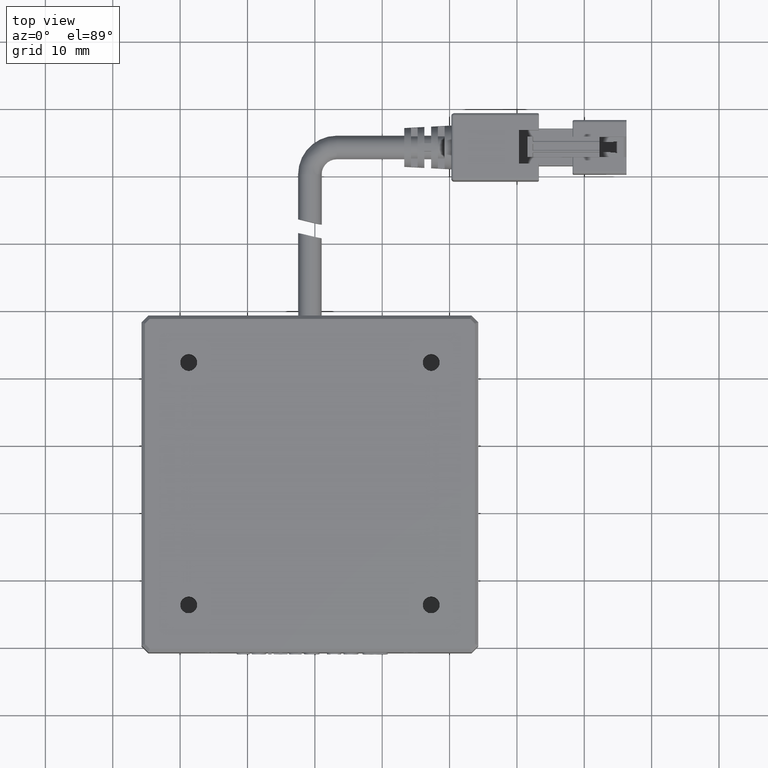
[diagram: clean part render]
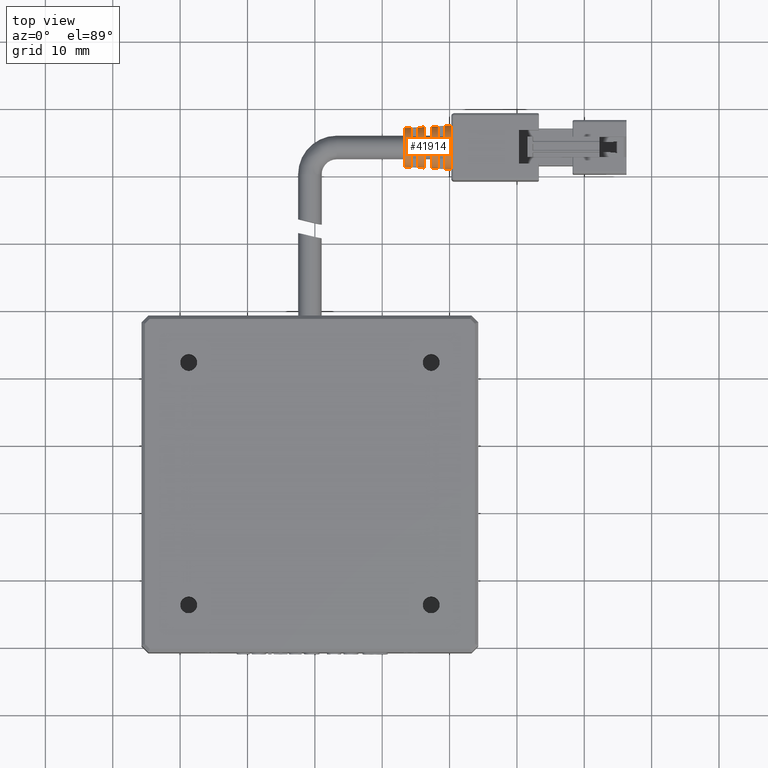
[diagram: same view with one face highlighted and labeled with its STEP entity id]
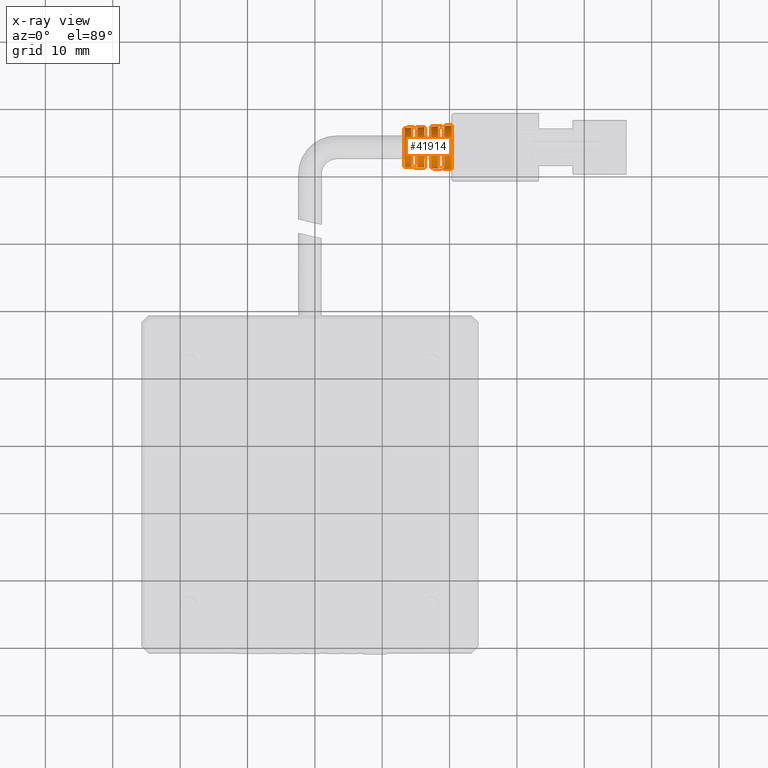
[diagram: x-ray of the same camera — body ghosted, the highlighted face saturated]
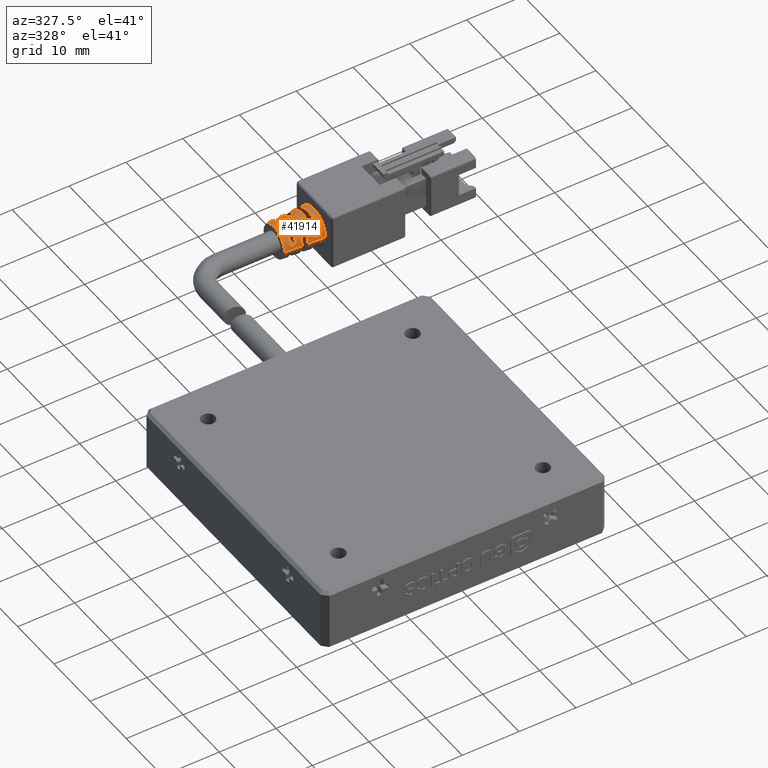
[diagram: same view with one face highlighted and labeled with its STEP entity id]
A machine part, top view. The second image highlights one B-rep face of the part: STEP entity #41914.
The next image is the same camera in x-ray: the body ghosted, the highlighted face saturated — about 0% of this face is hidden behind the body in this view.
A second angle (auxiliary view) of the same face is appended — the face is thin or edge-on in the first view.
In plain terms, the highlighted conical surface has half-angle 3 deg.
Its self-contained STEP definition (entity closure, byte-faithful):
#172 = CARTESIAN_POINT ( 'NONE',  ( 36.26702531644617300, 63.61113924050633300, 1.730577619171422600 ) ) ;
#331 = VERTEX_POINT ( 'NONE', #29897 ) ;
#499 = ORIENTED_EDGE ( 'NONE', *, *, #27293, .T. ) ;
#663 = ORIENTED_EDGE ( 'NONE', *, *, #42182, .T. ) ;
#861 = AXIS2_PLACEMENT_3D ( 'NONE', #16509, #39329, #19837 ) ;
#905 = EDGE_CURVE ( 'NONE', #26770, #31217, #25239, .T. ) ;
#979 = CARTESIAN_POINT ( 'NONE',  ( 36.26702531643662300, 64.21113924050634100, -1.250000000000000700 ) ) ;
#1541 = ORIENTED_EDGE ( 'NONE', *, *, #14907, .T. ) ;
#1725 = VECTOR ( 'NONE', #1904, 1000.000000000000200 ) ;
#1745 = DIRECTION ( 'NONE',  ( 0.9986295347545816000, 0.05233595624279531500, -4.539420596603596700E-018 ) ) ;
#1880 = VERTEX_POINT ( 'NONE', #18874 ) ;
#1904 = DIRECTION ( 'NONE',  ( 0.9986295347545816000, 0.05233595624279531500, -4.539420596603596700E-018 ) ) ;
#1972 = DIRECTION ( 'NONE',  ( -1.000000000000000000, -0.0000000000000000000, -0.0000000000000000000 ) ) ;
#1989 = DIRECTION ( 'NONE',  ( 0.0000000000000000000, 1.000000000000000000, -6.672013369143582000E-017 ) ) ;
#2211 = CARTESIAN_POINT ( 'NONE',  ( 40.26702531645572200, 60.96113924050732900, -1.250000000000000000 ) ) ;
#2361 = CARTESIAN_POINT ( 'NONE',  ( 36.60035832392478000, 64.81113924050633600, 1.748397300001394800 ) ) ;
#2419 = CARTESIAN_POINT ( 'NONE',  ( 34.26702531646981200, 67.08472120728976100, -0.6500000000000016900 ) ) ;
#2763 = CIRCLE ( 'NONE', #36820, 2.987961103584790800 ) ;
#2811 = AXIS2_PLACEMENT_3D ( 'NONE', #22574, #6587, #19724 ) ;
#2850 = ORIENTED_EDGE ( 'NONE', *, *, #21846, .T. ) ;
#3144 = VERTEX_POINT ( 'NONE', #40785 ) ;
#4222 = DIRECTION ( 'NONE',  ( 0.0000000000000000000, 1.000000000000000000, -9.984861047838719200E-016 ) ) ;
#4897 = VERTEX_POINT ( 'NONE', #26380 ) ;
#4975 = CARTESIAN_POINT ( 'NONE',  ( 38.93369169520680400, 61.08812897988507700, -0.6500000000000004700 ) ) ;
#5043 = VERTEX_POINT ( 'NONE', #14240 ) ;
#5325 = B_SPLINE_CURVE_WITH_KNOTS ( 'NONE', 3,
 ( #2419, #5519, #31462, #5649 ),
 .UNSPECIFIED., .F., .F.,
 ( 4, 4 ),
 ( 2.821323884305459600E-015, 0.001001431039903069900 ),
 .UNSPECIFIED. ) ;
#5519 = CARTESIAN_POINT ( 'NONE',  ( 34.60035828589212100, 67.10256718773193500, -0.6500000000000016900 ) ) ;
#5649 = CARTESIAN_POINT ( 'NONE',  ( 35.26702531645936700, 67.13823875308449400, -0.6500000000000015800 ) ) ;
#5942 = DIRECTION ( 'NONE',  ( 1.000000000000000000, 0.0000000000000000000, 0.0000000000000000000 ) ) ;
#6250 = VECTOR ( 'NONE', #1745, 1000.000000000000200 ) ;
#6303 = CARTESIAN_POINT ( 'NONE',  ( 37.26702531646982000, 61.11836257835526000, -1.250000000000000000 ) ) ;
#6365 = CARTESIAN_POINT ( 'NONE',  ( 34.93369162600836100, 61.30187223562795400, -0.6500000000000011300 ) ) ;
#6587 = DIRECTION ( 'NONE',  ( 1.000000000000000000, 0.0000000000000000000, 0.0000000000000000000 ) ) ;
#6601 = CARTESIAN_POINT ( 'NONE',  ( 34.26702531646981200, 67.08472120728976100, -0.6500000000000016900 ) ) ;
#6651 = CARTESIAN_POINT ( 'NONE',  ( 36.93369166311235600, 63.61113924050633300, 1.766210776928611700 ) ) ;
#6823 = CIRCLE ( 'NONE', #36509, 3.197592220717360200 ) ;
#7009 = AXIS2_PLACEMENT_3D ( 'NONE', #32093, #12530, #35339 ) ;
#7090 = CIRCLE ( 'NONE', #16232, 3.040368882866448400 ) ;
#7447 = CARTESIAN_POINT ( 'NONE',  ( 36.26702531643662300, 67.25150812337278700, -1.250000000000000900 ) ) ;
#8037 = EDGE_CURVE ( 'NONE', #39608, #37147, #40804, .T. ) ;
#8627 = FACE_BOUND ( 'NONE', #16691, .T. ) ;
#9239 = B_SPLINE_CURVE_WITH_KNOTS ( 'NONE', 3,
 ( #15329, #35030, #15625, #38423 ),
 .UNSPECIFIED., .F., .F.,
 ( 4, 4 ),
 ( 9.453208419344606800E-016, 0.001001423258045922700 ),
 .UNSPECIFIED. ) ;
#10423 = EDGE_CURVE ( 'NONE', #20708, #1880, #40913, .T. ) ;
#10573 = VERTEX_POINT ( 'NONE', #18946 ) ;
#11100 = DIRECTION ( 'NONE',  ( 0.9986295347545816000, -0.05233595624279531500, 1.094872672590911800E-017 ) ) ;
#11434 = ORIENTED_EDGE ( 'NONE', *, *, #10423, .F. ) ;
#11529 = CARTESIAN_POINT ( 'NONE',  ( 38.26702531644808400, 61.12371552960575400, -0.6500000000000006900 ) ) ;
#11629 = EDGE_LOOP ( 'NONE', ( #16406, #499, #18604, #32331 ) ) ;
#11708 = ORIENTED_EDGE ( 'NONE', *, *, #35812, .T. ) ;
#12018 = VERTEX_POINT ( 'NONE', #27132 ) ;
#12530 = DIRECTION ( 'NONE',  ( -1.000000000000000000, -0.0000000000000000000, -0.0000000000000000000 ) ) ;
#12569 = CIRCLE ( 'NONE', #42190, 3.249999999999017700 ) ;
#13699 = ORIENTED_EDGE ( 'NONE', *, *, #26383, .T. ) ;
#14160 = CARTESIAN_POINT ( 'NONE',  ( 38.26702531644617300, 64.21113924050634100, -1.250000000000000700 ) ) ;
#14240 = CARTESIAN_POINT ( 'NONE',  ( 33.26702531645072000, 61.32799369548783400, -1.250000000000000000 ) ) ;
#14907 = EDGE_CURVE ( 'NONE', #331, #4897, #6823, .T. ) ;
#15087 = CIRCLE ( 'NONE', #861, 2.883145545018506200 ) ;
#15329 = CARTESIAN_POINT ( 'NONE',  ( 38.26702531645094800, 67.29856295140706400, -0.6500000000000011300 ) ) ;
#15409 = DIRECTION ( 'NONE',  ( 1.000000000000000000, 0.0000000000000000000, 0.0000000000000000000 ) ) ;
#15625 = CARTESIAN_POINT ( 'NONE',  ( 38.93369169520680400, 67.33414950112761200, -0.6500000000000011300 ) ) ;
#16186 = CARTESIAN_POINT ( 'NONE',  ( 34.26702531647827500, 61.33755727372246000, -0.6500000000000012400 ) ) ;
#16232 = AXIS2_PLACEMENT_3D ( 'NONE', #979, #23736, #4222 ) ;
#16375 = VERTEX_POINT ( 'NONE', #35387 ) ;
#16406 = ORIENTED_EDGE ( 'NONE', *, *, #18464, .T. ) ;
#16493 = VECTOR ( 'NONE', #11100, 1000.000000000000200 ) ;
#16509 = CARTESIAN_POINT ( 'NONE',  ( 33.26702531645072000, 64.21113924050634100, -1.250000000000000700 ) ) ;
#16516 = B_SPLINE_CURVE_WITH_KNOTS ( 'NONE', 3,
 ( #29215, #6365, #35729, #16186 ),
 .UNSPECIFIED., .F., .F.,
 ( 4, 4 ),
 ( 4.726604209672303400E-016, 0.001001431039896517200 ),
 .UNSPECIFIED. ) ;
#16691 = EDGE_LOOP ( 'NONE', ( #35549, #1541, #18595, #21343 ) ) ;
#16818 = CARTESIAN_POINT ( 'NONE',  ( 36.26702531644042400, 64.81113924050633600, 1.730577619171115100 ) ) ;
#17344 = DIRECTION ( 'NONE',  ( 0.9986295347545816000, -0.05233595624279531500, 1.094872672590911800E-017 ) ) ;
#17432 = DIRECTION ( 'NONE',  ( 0.0000000000000000000, 1.000000000000000000, -6.894363066298365700E-017 ) ) ;
#17491 = DIRECTION ( 'NONE',  ( 1.000000000000000000, 0.0000000000000000000, 0.0000000000000000000 ) ) ;
#17634 = VERTEX_POINT ( 'NONE', #7447 ) ;
#18464 = EDGE_CURVE ( 'NONE', #21479, #26028, #5325, .T. ) ;
#18489 = VERTEX_POINT ( 'NONE', #25334 ) ;
#18545 = CARTESIAN_POINT ( 'NONE',  ( 37.26702531646277100, 64.81113924050633600, 1.784018372051174200 ) ) ;
#18595 = ORIENTED_EDGE ( 'NONE', *, *, #37954, .T. ) ;
#18604 = ORIENTED_EDGE ( 'NONE', *, *, #39867, .T. ) ;
#18813 = B_SPLINE_CURVE_WITH_KNOTS ( 'NONE', 3,
 ( #172, #26178, #6651, #29498 ),
 .UNSPECIFIED., .F., .F.,
 ( 4, 4 ),
 ( 1.945664656350847900E-015, 0.001001426938979536800 ),
 .UNSPECIFIED. ) ;
#18874 = CARTESIAN_POINT ( 'NONE',  ( 40.26702531645572200, 67.46113924050536100, -1.250000000000000900 ) ) ;
#18901 = DIRECTION ( 'NONE',  ( 1.000000000000000000, 0.0000000000000000000, 0.0000000000000000000 ) ) ;
#18946 = CARTESIAN_POINT ( 'NONE',  ( 37.26702531646277100, 64.81113924050633600, 1.784018372051174200 ) ) ;
#19511 = EDGE_CURVE ( 'NONE', #24938, #17634, #35353, .T. ) ;
#19724 = DIRECTION ( 'NONE',  ( 0.0000000000000000000, 1.000000000000000000, -6.672013369168055200E-017 ) ) ;
#19837 = DIRECTION ( 'NONE',  ( 0.0000000000000000000, 1.000000000000000000, -7.520967329303143100E-017 ) ) ;
#19991 = EDGE_CURVE ( 'NONE', #5043, #16375, #29266, .T. ) ;
#20360 = CARTESIAN_POINT ( 'NONE',  ( 38.26702531645094800, 67.29856295140706400, -0.6500000000000011300 ) ) ;
#20572 = VECTOR ( 'NONE', #17344, 1000.000000000000200 ) ;
#20640 = CARTESIAN_POINT ( 'NONE',  ( 40.26702531622834900, 60.96113924051923800, -1.250000000000000000 ) ) ;
#20708 = VERTEX_POINT ( 'NONE', #33945 ) ;
#21343 = ORIENTED_EDGE ( 'NONE', *, *, #8037, .T. ) ;
#21460 = CARTESIAN_POINT ( 'NONE',  ( 36.26702531643662300, 64.21113924050634100, -1.250000000000000700 ) ) ;
#21473 = DIRECTION ( 'NONE',  ( -1.000000000000000000, -0.0000000000000000000, -0.0000000000000000000 ) ) ;
#21479 = VERTEX_POINT ( 'NONE', #6601 ) ;
#21547 = AXIS2_PLACEMENT_3D ( 'NONE', #38409, #18901, #41644 ) ;
#21846 = EDGE_CURVE ( 'NONE', #31181, #26770, #37348, .T. ) ;
#21854 = CARTESIAN_POINT ( 'NONE',  ( 36.93369166311235600, 64.81113924050633600, 1.766210776928611700 ) ) ;
#22574 = CARTESIAN_POINT ( 'NONE',  ( 40.26702531622834900, 64.21113924050634100, -1.250000000000000700 ) ) ;
#22828 = CARTESIAN_POINT ( 'NONE',  ( 33.26702531645072000, 67.09428478552484900, -1.250000000000000900 ) ) ;
#23066 = EDGE_CURVE ( 'NONE', #20708, #10573, #38635, .T. ) ;
#23481 = EDGE_CURVE ( 'NONE', #24938, #5043, #15087, .T. ) ;
#23736 = DIRECTION ( 'NONE',  ( -1.000000000000000000, -0.0000000000000000000, -0.0000000000000000000 ) ) ;
#24482 = ORIENTED_EDGE ( 'NONE', *, *, #32414, .T. ) ;
#24758 = DIRECTION ( 'NONE',  ( 0.0000000000000000000, 1.000000000000000000, 1.711690465343780600E-015 ) ) ;
#24938 = VERTEX_POINT ( 'NONE', #22828 ) ;
#25154 = CARTESIAN_POINT ( 'NONE',  ( 36.26702531644042400, 64.81113924050633600, 1.730577619171115100 ) ) ;
#25239 = LINE ( 'NONE', #27374, #16493 ) ;
#25334 = CARTESIAN_POINT ( 'NONE',  ( 34.26702531647827500, 61.33755727372246000, -0.6500000000000012400 ) ) ;
#25362 = AXIS2_PLACEMENT_3D ( 'NONE', #14160, #36992, #17432 ) ;
#25494 = CARTESIAN_POINT ( 'NONE',  ( 39.26702531647936900, 64.21113924050634100, -1.250000000000000700 ) ) ;
#25522 = EDGE_CURVE ( 'NONE', #3144, #31181, #18813, .T. ) ;
#25958 = FACE_BOUND ( 'NONE', #11629, .T. ) ;
#26028 = VERTEX_POINT ( 'NONE', #41127 ) ;
#26178 = CARTESIAN_POINT ( 'NONE',  ( 36.60035832392478000, 63.61113924050633300, 1.748397300001395300 ) ) ;
#26380 = CARTESIAN_POINT ( 'NONE',  ( 39.26702531646754600, 61.07034379826750800, -0.6500000000000003600 ) ) ;
#26383 = EDGE_CURVE ( 'NONE', #42005, #17634, #7090, .T. ) ;
#26770 = VERTEX_POINT ( 'NONE', #6303 ) ;
#27132 = CARTESIAN_POINT ( 'NONE',  ( 35.26702531645798900, 61.28403972792824600, -0.6500000000000011300 ) ) ;
#27153 = EDGE_CURVE ( 'NONE', #18489, #21479, #28801, .T. ) ;
#27293 = EDGE_CURVE ( 'NONE', #26028, #12018, #2763, .T. ) ;
#27374 = CARTESIAN_POINT ( 'NONE',  ( 40.26702531622834900, 60.96113924051923800, -1.250000000000000000 ) ) ;
#27548 = EDGE_CURVE ( 'NONE', #37147, #331, #9239, .T. ) ;
#27788 = CARTESIAN_POINT ( 'NONE',  ( 39.26702531646754600, 61.07034379826750800, -0.6500000000000003600 ) ) ;
#28127 = CARTESIAN_POINT ( 'NONE',  ( 37.26702531646699200, 63.61113924050633300, 1.784018372051399800 ) ) ;
#28772 = DIRECTION ( 'NONE',  ( 0.0000000000000000000, 1.000000000000000000, -6.781366088276698700E-017 ) ) ;
#28801 = CIRCLE ( 'NONE', #7009, 2.935553324303133300 ) ;
#29215 = CARTESIAN_POINT ( 'NONE',  ( 35.26702531645798900, 61.28403972792824600, -0.6500000000000011300 ) ) ;
#29266 = LINE ( 'NONE', #20640, #20572 ) ;
#29498 = CARTESIAN_POINT ( 'NONE',  ( 37.26702531646699200, 63.61113924050633300, 1.784018372051399800 ) ) ;
#29574 = CIRCLE ( 'NONE', #37920, 3.040368882866448400 ) ;
#29897 = CARTESIAN_POINT ( 'NONE',  ( 39.26702531647462300, 67.35193468274553700, -0.6500000000000010200 ) ) ;
#30216 = AXIS2_PLACEMENT_3D ( 'NONE', #34964, #15409, #38238 ) ;
#30507 = ORIENTED_EDGE ( 'NONE', *, *, #23066, .T. ) ;
#30937 = CARTESIAN_POINT ( 'NONE',  ( 40.26702531622834900, 67.46113924049343800, -1.250000000000000900 ) ) ;
#31057 = CARTESIAN_POINT ( 'NONE',  ( 38.60035835680047000, 61.10591946374124500, -0.6500000000000005800 ) ) ;
#31181 = VERTEX_POINT ( 'NONE', #28127 ) ;
#31217 = VERTEX_POINT ( 'NONE', #2211 ) ;
#31462 = CARTESIAN_POINT ( 'NONE',  ( 34.93369162600836100, 67.12040624538471400, -0.6500000000000015800 ) ) ;
#32093 = CARTESIAN_POINT ( 'NONE',  ( 34.26702531648391700, 64.21113924050634100, -1.250000000000000700 ) ) ;
#32331 = ORIENTED_EDGE ( 'NONE', *, *, #27153, .T. ) ;
#32414 = EDGE_CURVE ( 'NONE', #16375, #3144, #29574, .T. ) ;
#32960 = B_SPLINE_CURVE_WITH_KNOTS ( 'NONE', 3,
 ( #18545, #21854, #2361, #25154 ),
 .UNSPECIFIED., .F., .F.,
 ( 4, 4 ),
 ( 1.403651546814124500E-015, 0.001001426938980516500 ),
 .UNSPECIFIED. ) ;
#33945 = CARTESIAN_POINT ( 'NONE',  ( 37.26702531646982000, 67.30391590265740800, -1.250000000000000900 ) ) ;
#34652 = FACE_OUTER_BOUND ( 'NONE', #39758, .T. ) ;
#34964 = CARTESIAN_POINT ( 'NONE',  ( 37.26702531646982000, 64.21113924050634100, -1.250000000000000700 ) ) ;
#35030 = CARTESIAN_POINT ( 'NONE',  ( 38.60035835680046300, 67.31635901727143800, -0.6500000000000010200 ) ) ;
#35339 = DIRECTION ( 'NONE',  ( 0.0000000000000000000, 1.000000000000000000, 1.698940350408131500E-015 ) ) ;
#35353 = LINE ( 'NONE', #40742, #1725 ) ;
#35387 = CARTESIAN_POINT ( 'NONE',  ( 36.26702531643662300, 61.17077035763989600, -1.250000000000000000 ) ) ;
#35515 = ORIENTED_EDGE ( 'NONE', *, *, #19991, .T. ) ;
#35549 = ORIENTED_EDGE ( 'NONE', *, *, #27548, .T. ) ;
#35729 = CARTESIAN_POINT ( 'NONE',  ( 34.60035828589212100, 61.31971129328074700, -0.6500000000000012400 ) ) ;
#35812 = EDGE_CURVE ( 'NONE', #31217, #1880, #12569, .T. ) ;
#36439 = ORIENTED_EDGE ( 'NONE', *, *, #19511, .F. ) ;
#36509 = AXIS2_PLACEMENT_3D ( 'NONE', #25494, #5942, #28772 ) ;
#36820 = AXIS2_PLACEMENT_3D ( 'NONE', #37048, #17491, #40270 ) ;
#36992 = DIRECTION ( 'NONE',  ( -1.000000000000000000, -0.0000000000000000000, -0.0000000000000000000 ) ) ;
#37048 = CARTESIAN_POINT ( 'NONE',  ( 35.26702531646027000, 64.21113924050634100, -1.250000000000000700 ) ) ;
#37147 = VERTEX_POINT ( 'NONE', #20360 ) ;
#37348 = CIRCLE ( 'NONE', #30216, 3.092776662151075500 ) ;
#37920 = AXIS2_PLACEMENT_3D ( 'NONE', #21460, #1972, #24758 ) ;
#37954 = EDGE_CURVE ( 'NONE', #4897, #39608, #39204, .T. ) ;
#38082 = ORIENTED_EDGE ( 'NONE', *, *, #905, .T. ) ;
#38181 = CONICAL_SURFACE ( 'NONE', #2811, 3.249999999987096500, 0.05235987755968116900 ) ;
#38238 = DIRECTION ( 'NONE',  ( 0.0000000000000000000, 1.000000000000000000, -7.011189561495362000E-017 ) ) ;
#38409 = CARTESIAN_POINT ( 'NONE',  ( 37.26702531646982000, 64.21113924050634100, -1.250000000000000700 ) ) ;
#38423 = CARTESIAN_POINT ( 'NONE',  ( 39.26702531647462300, 67.35193468274553700, -0.6500000000000010200 ) ) ;
#38635 = CIRCLE ( 'NONE', #21547, 3.092776662151075500 ) ;
#39204 = B_SPLINE_CURVE_WITH_KNOTS ( 'NONE', 3,
 ( #27788, #4975, #31057, #11529 ),
 .UNSPECIFIED., .F., .F.,
 ( 4, 4 ),
 ( 2.341740480690032800E-015, 0.001001423258043095100 ),
 .UNSPECIFIED. ) ;
#39329 = DIRECTION ( 'NONE',  ( 1.000000000000000000, 0.0000000000000000000, 0.0000000000000000000 ) ) ;
#39608 = VERTEX_POINT ( 'NONE', #40126 ) ;
#39758 = EDGE_LOOP ( 'NONE', ( #40664, #35515, #24482, #41844, #2850, #38082, #11708, #11434, #30507, #663, #13699, #36439 ) ) ;
#39867 = EDGE_CURVE ( 'NONE', #12018, #18489, #16516, .T. ) ;
#40126 = CARTESIAN_POINT ( 'NONE',  ( 38.26702531644808400, 61.12371552960575400, -0.6500000000000006900 ) ) ;
#40270 = DIRECTION ( 'NONE',  ( 0.0000000000000000000, 1.000000000000000000, -7.257137123938718400E-017 ) ) ;
#40664 = ORIENTED_EDGE ( 'NONE', *, *, #23481, .T. ) ;
#40742 = CARTESIAN_POINT ( 'NONE',  ( 40.26702531622834900, 67.46113924049343800, -1.250000000000000900 ) ) ;
#40785 = CARTESIAN_POINT ( 'NONE',  ( 36.26702531644617300, 63.61113924050633300, 1.730577619171422600 ) ) ;
#40804 = CIRCLE ( 'NONE', #25362, 3.145184441432733000 ) ;
#40913 = LINE ( 'NONE', #30937, #6250 ) ;
#40967 = CARTESIAN_POINT ( 'NONE',  ( 40.26702531645572200, 64.21113924050634100, -1.250000000000000700 ) ) ;
#41127 = CARTESIAN_POINT ( 'NONE',  ( 35.26702531645936700, 67.13823875308449400, -0.6500000000000015800 ) ) ;
#41644 = DIRECTION ( 'NONE',  ( 0.0000000000000000000, 1.000000000000000000, -7.011189561495362000E-017 ) ) ;
#41844 = ORIENTED_EDGE ( 'NONE', *, *, #25522, .T. ) ;
#41914 = ADVANCED_FACE ( 'NONE', ( #8627, #25958, #34652 ), #38181, .T. ) ;
#42005 = VERTEX_POINT ( 'NONE', #16818 ) ;
#42182 = EDGE_CURVE ( 'NONE', #10573, #42005, #32960, .T. ) ;
#42190 = AXIS2_PLACEMENT_3D ( 'NONE', #40967, #21473, #1989 ) ;